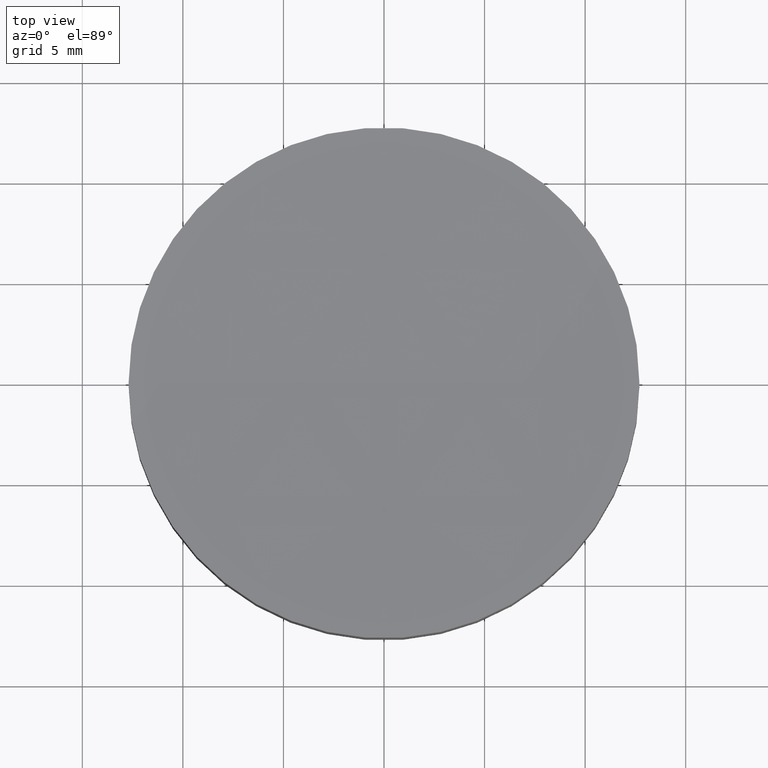
[diagram: clean part render]
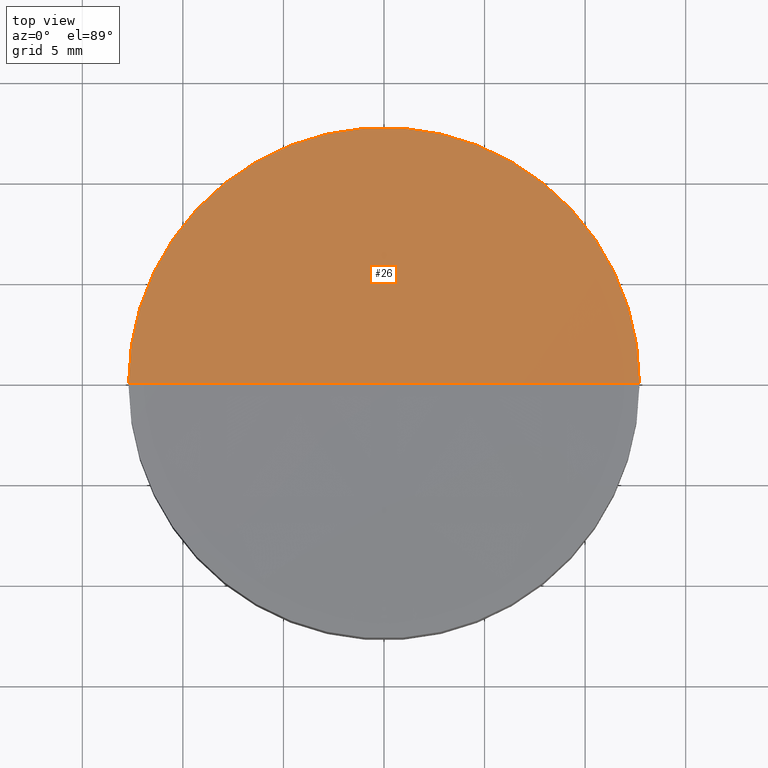
[diagram: same view with one face highlighted and labeled with its STEP entity id]
A machine part, top view. The second image highlights one B-rep face of the part: STEP entity #26.
In plain terms, the highlighted spherical surface has radius 400 mm.
Its self-contained STEP definition (entity closure, byte-faithful):
#16 = ORIENTED_EDGE ( 'NONE', *, *, #156, .F. ) ;
#21 = DIRECTION ( 'NONE',  ( 0.000000000000000000, -1.000000000000000000, -0.000000000000000000 ) ) ;
#22 = CIRCLE ( 'NONE', #57, 12.69999999999923546 ) ;
#23 = DIRECTION ( 'NONE',  ( 1.000000000000000000, 0.000000000000000000, 0.000000000000000000 ) ) ;
#26 = ADVANCED_FACE ( 'NONE', ( #97 ), #36, .F. ) ;
#30 = AXIS2_PLACEMENT_3D ( 'NONE', #99, #21, #23 ) ;
#36 = SPHERICAL_SURFACE ( 'NONE', #30, 400.0000000000000000 ) ;
#41 = DIRECTION ( 'NONE',  ( -0.000000000000000000, -0.000000000000000000, -1.000000000000000000 ) ) ;
#53 = CARTESIAN_POINT ( 'NONE',  ( 7.479991678627446061E-14, 0.000000000000000000, 5.798336664874115698 ) ) ;
#57 = AXIS2_PLACEMENT_3D ( 'NONE', #86, #41, #82 ) ;
#60 = VERTEX_POINT ( 'NONE', #191 ) ;
#64 = AXIS2_PLACEMENT_3D ( 'NONE', #136, #102, #148 ) ;
#72 = EDGE_LOOP ( 'NONE', ( #93, #158, #16 ) ) ;
#74 = VERTEX_POINT ( 'NONE', #177 ) ;
#81 = CIRCLE ( 'NONE', #149, 400.0000000000000568 ) ;
#82 = DIRECTION ( 'NONE',  ( 1.000000000000000000, 0.000000000000000000, 0.000000000000000000 ) ) ;
#86 = CARTESIAN_POINT ( 'NONE',  ( 5.030698080332740574E-14, 0.000000000000000000, 6.000000000000005329 ) ) ;
#93 = ORIENTED_EDGE ( 'NONE', *, *, #122, .F. ) ;
#97 = FACE_OUTER_BOUND ( 'NONE', #72, .T. ) ;
#99 = CARTESIAN_POINT ( 'NONE',  ( 5.030698080332740574E-14, 0.000000000000000000, 405.7983366648741139 ) ) ;
#100 = EDGE_CURVE ( 'NONE', #60, #145, #193, .T. ) ;
#102 = DIRECTION ( 'NONE',  ( 1.224646799147353207E-16, -1.000000000000000000, 0.000000000000000000 ) ) ;
#122 = EDGE_CURVE ( 'NONE', #60, #74, #22, .T. ) ;
#127 = CARTESIAN_POINT ( 'NONE',  ( 5.030698080332740574E-14, 0.000000000000000000, 405.7983366648741139 ) ) ;
#136 = CARTESIAN_POINT ( 'NONE',  ( 5.030698080332740574E-14, 0.000000000000000000, 405.7983366648741139 ) ) ;
#145 = VERTEX_POINT ( 'NONE', #53 ) ;
#148 = DIRECTION ( 'NONE',  ( 1.000000000000000000, 1.224646799147353207E-16, 0.000000000000000000 ) ) ;
#149 = AXIS2_PLACEMENT_3D ( 'NONE', #127, #188, #190 ) ;
#156 = EDGE_CURVE ( 'NONE', #74, #145, #81, .T. ) ;
#158 = ORIENTED_EDGE ( 'NONE', *, *, #100, .T. ) ;
#177 = CARTESIAN_POINT ( 'NONE',  ( 12.69999999999928697, 1.555301434917095045E-15, 6.000000000000005329 ) ) ;
#188 = DIRECTION ( 'NONE',  ( 0.000000000000000000, 1.000000000000000000, -0.000000000000000000 ) ) ;
#190 = DIRECTION ( 'NONE',  ( 0.000000000000000000, 0.000000000000000000, 1.000000000000000000 ) ) ;
#191 = CARTESIAN_POINT ( 'NONE',  ( -12.69999999999918572, 0.000000000000000000, 6.000000000000005329 ) ) ;
#193 = CIRCLE ( 'NONE', #64, 400.0000000000000000 ) ;